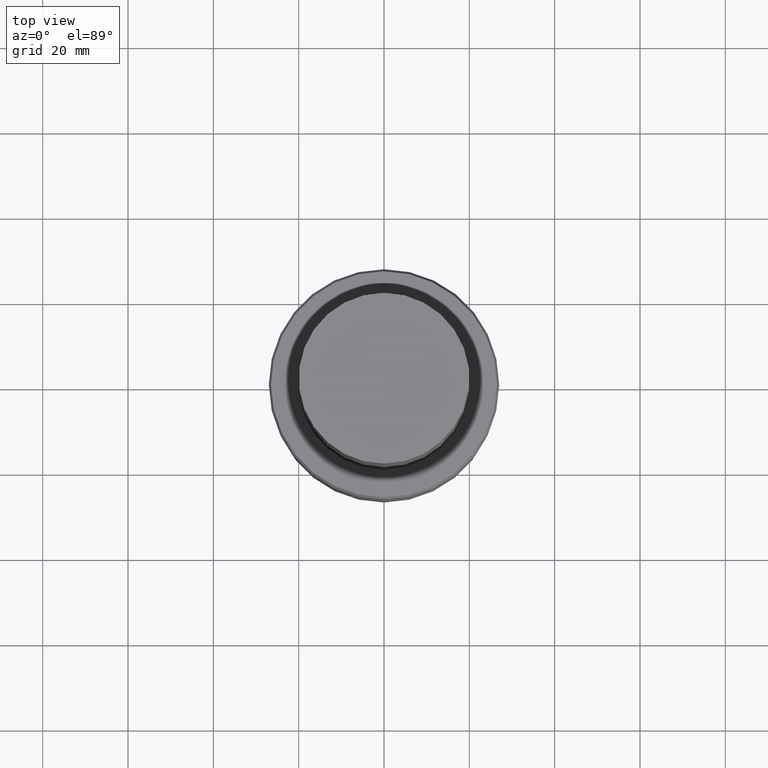
[diagram: clean part render]
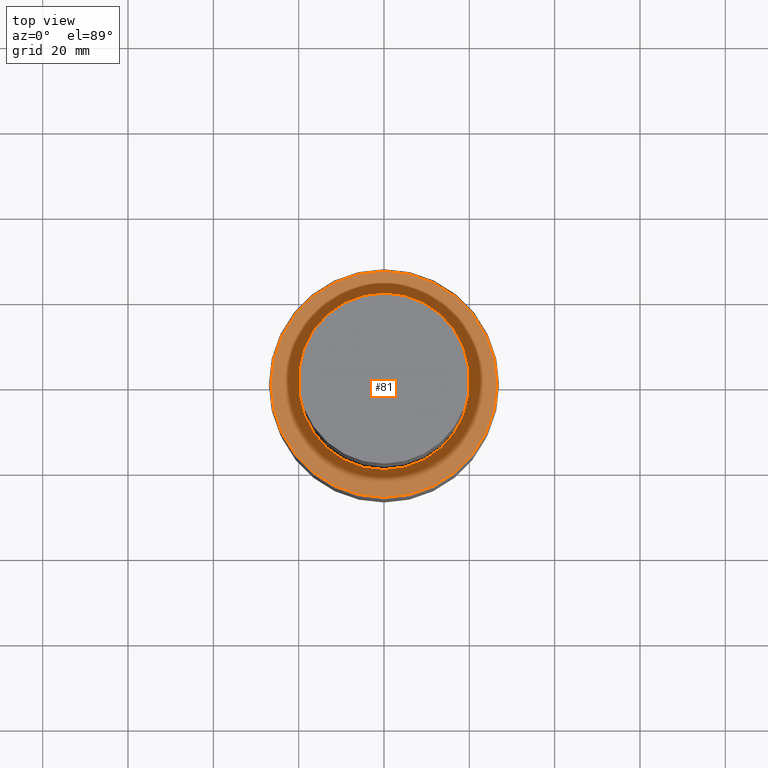
[diagram: same view with one face highlighted and labeled with its STEP entity id]
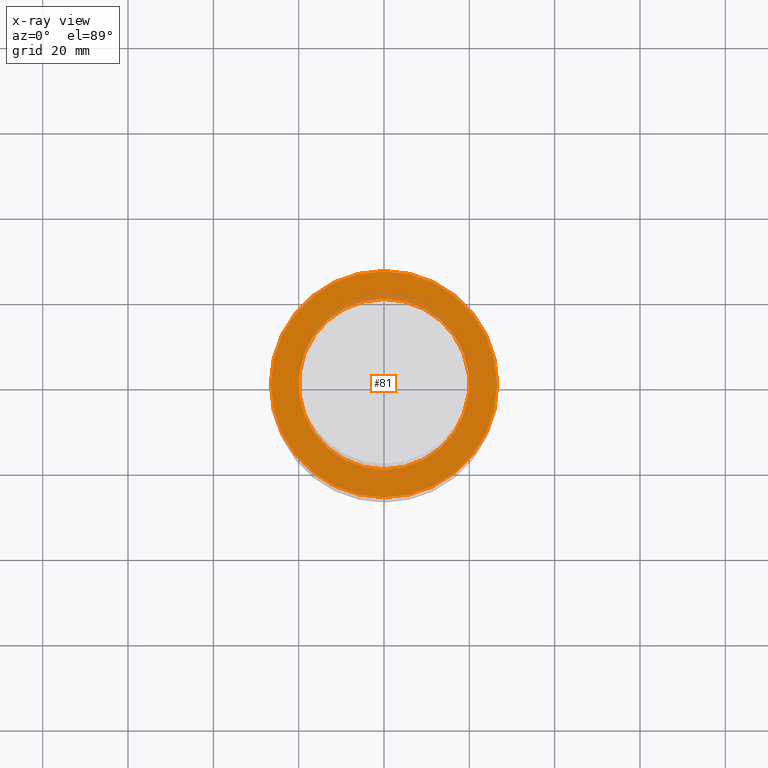
[diagram: x-ray of the same camera — body ghosted, the highlighted face saturated]
A machine part, top view. The second image highlights one B-rep face of the part: STEP entity #81.
The next image is the same camera in x-ray: the body ghosted, the highlighted face saturated — about 6% of this face is hidden behind the body in this view.
In plain terms, the highlighted planar face has unit normal (-0, 0, 1).
Its self-contained STEP definition (entity closure, byte-faithful):
#49=EDGE_CURVE('Unnamed[1]',#113,#113,#114,.T.);
#53=EDGE_CURVE('Unnamed[1]',#119,#119,#120,.T.);
#81=ADVANCED_FACE('Unnamed[1]',(#162,#163),#164,.T.);
#113=VERTEX_POINT('',#192);
#114=CIRCLE('',#193,26.4999999999802);
#119=VERTEX_POINT('',#200);
#120=CIRCLE('',#201,19.9999999999954);
#162=FACE_OUTER_BOUND('',#253,.T.);
#163=FACE_BOUND('',#254,.T.);
#164=PLANE('',#255);
#192=CARTESIAN_POINT('',(-4.43934464690906E-015,26.4999999999802,72.4999999999984));
#193=AXIS2_PLACEMENT_3D('',#274,#275,#276);
#200=CARTESIAN_POINT('',(-4.43934464690906E-015,19.9999999999954,72.4999999999984));
#201=AXIS2_PLACEMENT_3D('',#280,#281,#282);
#253=EDGE_LOOP('',(#330));
#254=EDGE_LOOP('',(#331));
#255=AXIS2_PLACEMENT_3D('',#332,#333,#334);
#274=CARTESIAN_POINT('',(-4.43934464690906E-015,-8.87868929381811E-015,72.4999999999984));
#275=DIRECTION('',(6.12323399573677E-017,1.22464679914735E-016,-1.0));
#276=DIRECTION('',(-1.23259516440783E-032,1.0,1.22464679914735E-016));
#280=CARTESIAN_POINT('',(-4.43934464690906E-015,-8.87868929381811E-015,72.4999999999984));
#281=DIRECTION('',(6.12323399573677E-017,1.22464679914735E-016,-1.0));
#282=DIRECTION('',(-1.23259516440783E-032,1.0,1.22464679914735E-016));
#330=ORIENTED_EDGE('',*,*,#49,.F.);
#331=ORIENTED_EDGE('',*,*,#53,.T.);
#332=CARTESIAN_POINT('',(-4.43934464690906E-015,23.2499999999878,72.4999999999984));
#333=DIRECTION('',(-6.12323399573677E-017,1.50820987685946E-016,1.0));
#334=DIRECTION('',(-4.40796925992276E-033,-1.0,1.50820987685946E-016));